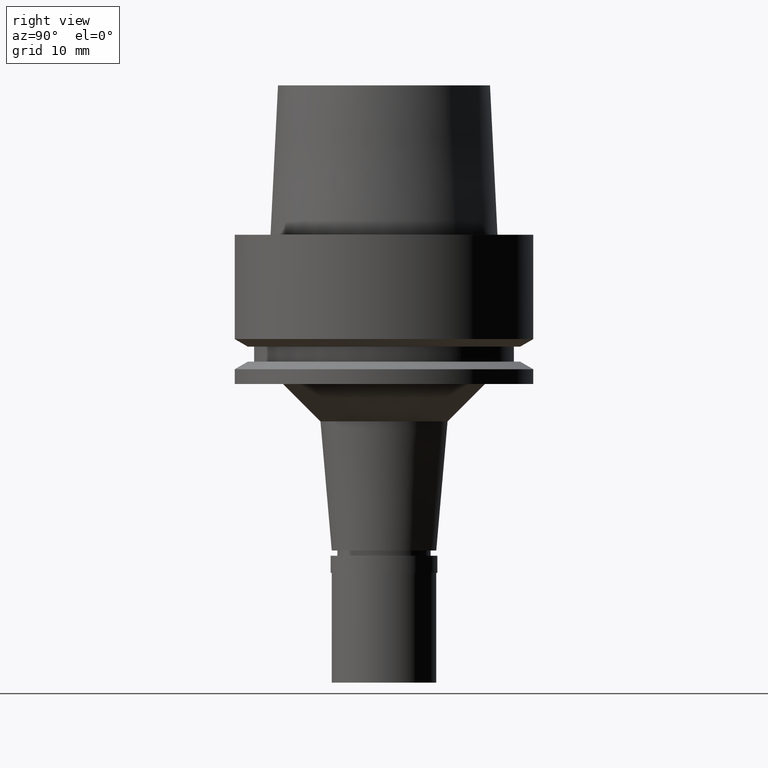
[diagram: clean part render]
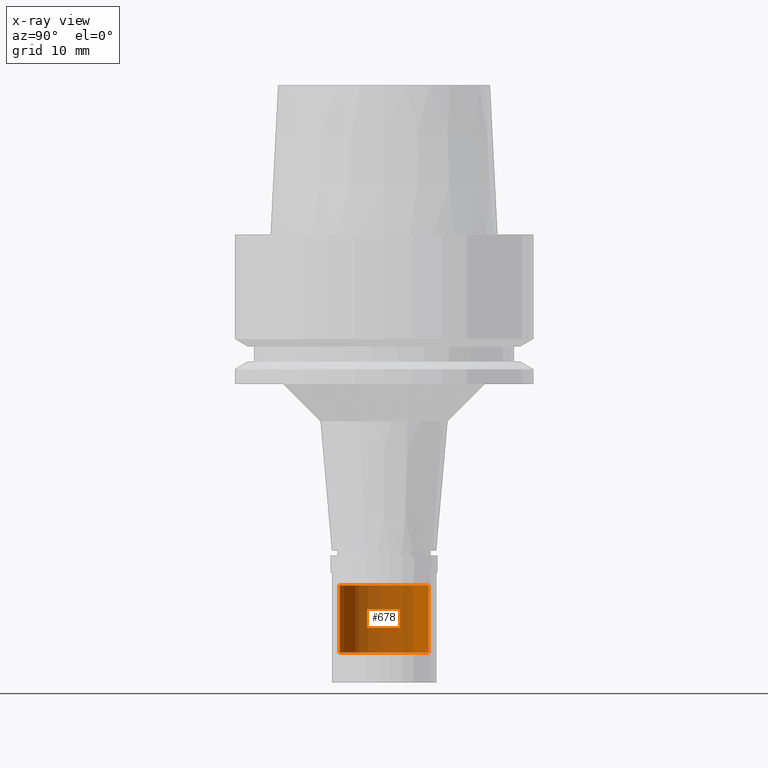
[diagram: x-ray — body ghosted, one internal face saturated and labeled with its STEP entity id]
A machine part, right view, then the same camera in x-ray: the body is ghosted and one INTERNAL B-rep face — a face not visible from any outside direction — is saturated and labeled: STEP entity #678.
In plain terms, the highlighted cylindrical surface (partial cylindrical patch) has radius 6 mm, axis along (0, 0, 1).
Its self-contained STEP definition (entity closure, byte-faithful):
#34 = DIRECTION ( 'NONE',  ( 0.0000000000000000000, 0.0000000000000000000, -1.000000000000000000 ) ) ;
#185 = DIRECTION ( 'NONE',  ( 0.0000000000000000000, 0.0000000000000000000, 1.000000000000000000 ) ) ;
#198 = DIRECTION ( 'NONE',  ( 0.0000000000000000000, 0.0000000000000000000, 1.000000000000000000 ) ) ;
#240 = CARTESIAN_POINT ( 'NONE',  ( 0.0000000000000000000, 0.0000000000000000000, -47.00000000000000000 ) ) ;
#290 = DIRECTION ( 'NONE',  ( 0.0000000000000000000, 0.0000000000000000000, -1.000000000000000000 ) ) ;
#322 = AXIS2_PLACEMENT_3D ( 'NONE', #2500, #185, #2514 ) ;
#358 = EDGE_CURVE ( 'NONE', #1852, #1827, #942, .T. ) ;
#393 = DIRECTION ( 'NONE',  ( 0.0000000000000000000, -1.000000000000000000, 0.0000000000000000000 ) ) ;
#678 = ADVANCED_FACE ( 'NONE', ( #1448 ), #2276, .T. ) ;
#763 = DIRECTION ( 'NONE',  ( 0.0000000000000000000, 1.000000000000000000, 0.0000000000000000000 ) ) ;
#770 = VERTEX_POINT ( 'NONE', #1627 ) ;
#838 = EDGE_LOOP ( 'NONE', ( #2260, #1530, #2657, #2339 ) ) ;
#913 = EDGE_CURVE ( 'NONE', #1852, #770, #2019, .T. ) ;
#942 = LINE ( 'NONE', #1349, #1650 ) ;
#1070 = CARTESIAN_POINT ( 'NONE',  ( 0.0000000000000000000, -6.000000000000000000, -56.00000000000000000 ) ) ;
#1123 = DIRECTION ( 'NONE',  ( 0.0000000000000000000, 0.0000000000000000000, -1.000000000000000000 ) ) ;
#1252 = CARTESIAN_POINT ( 'NONE',  ( 0.0000000000000000000, 0.0000000000000000000, -59.79999999999999716 ) ) ;
#1290 = CARTESIAN_POINT ( 'NONE',  ( 0.0000000000000000000, 6.000000000000000000, -47.00000000000000000 ) ) ;
#1321 = AXIS2_PLACEMENT_3D ( 'NONE', #240, #34, #393 ) ;
#1349 = CARTESIAN_POINT ( 'NONE',  ( 0.0000000000000000000, -6.000000000000000000, -47.00000000000000000 ) ) ;
#1424 = VECTOR ( 'NONE', #290, 1000.000000000000000 ) ;
#1437 = AXIS2_PLACEMENT_3D ( 'NONE', #1252, #198, #763 ) ;
#1448 = FACE_OUTER_BOUND ( 'NONE', #838, .T. ) ;
#1488 = CARTESIAN_POINT ( 'NONE',  ( 0.0000000000000000000, 6.000000000000000000, -56.00000000000000000 ) ) ;
#1530 = ORIENTED_EDGE ( 'NONE', *, *, #358, .F. ) ;
#1627 = CARTESIAN_POINT ( 'NONE',  ( 0.0000000000000000000, 6.000000000000000000, -47.00000000000000000 ) ) ;
#1650 = VECTOR ( 'NONE', #1123, 1000.000000000000000 ) ;
#1827 = VERTEX_POINT ( 'NONE', #1070 ) ;
#1852 = VERTEX_POINT ( 'NONE', #2510 ) ;
#2019 = CIRCLE ( 'NONE', #1321, 6.000000000000000000 ) ;
#2095 = EDGE_CURVE ( 'NONE', #770, #2656, #2350, .T. ) ;
#2260 = ORIENTED_EDGE ( 'NONE', *, *, #2633, .T. ) ;
#2276 = CYLINDRICAL_SURFACE ( 'NONE', #1437, 6.000000000000000000 ) ;
#2339 = ORIENTED_EDGE ( 'NONE', *, *, #2095, .T. ) ;
#2350 = LINE ( 'NONE', #1290, #1424 ) ;
#2367 = CIRCLE ( 'NONE', #322, 6.000000000000000000 ) ;
#2500 = CARTESIAN_POINT ( 'NONE',  ( 0.0000000000000000000, 0.0000000000000000000, -56.00000000000000000 ) ) ;
#2510 = CARTESIAN_POINT ( 'NONE',  ( 0.0000000000000000000, -6.000000000000000000, -47.00000000000000000 ) ) ;
#2514 = DIRECTION ( 'NONE',  ( 0.0000000000000000000, 1.000000000000000000, 0.0000000000000000000 ) ) ;
#2633 = EDGE_CURVE ( 'NONE', #2656, #1827, #2367, .T. ) ;
#2656 = VERTEX_POINT ( 'NONE', #1488 ) ;
#2657 = ORIENTED_EDGE ( 'NONE', *, *, #913, .T. ) ;